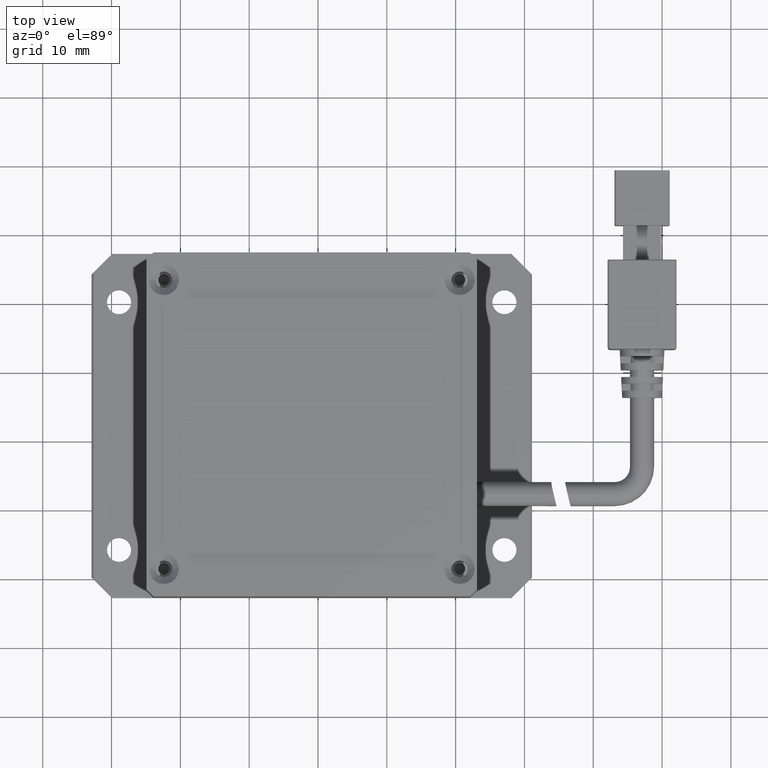
[diagram: clean part render]
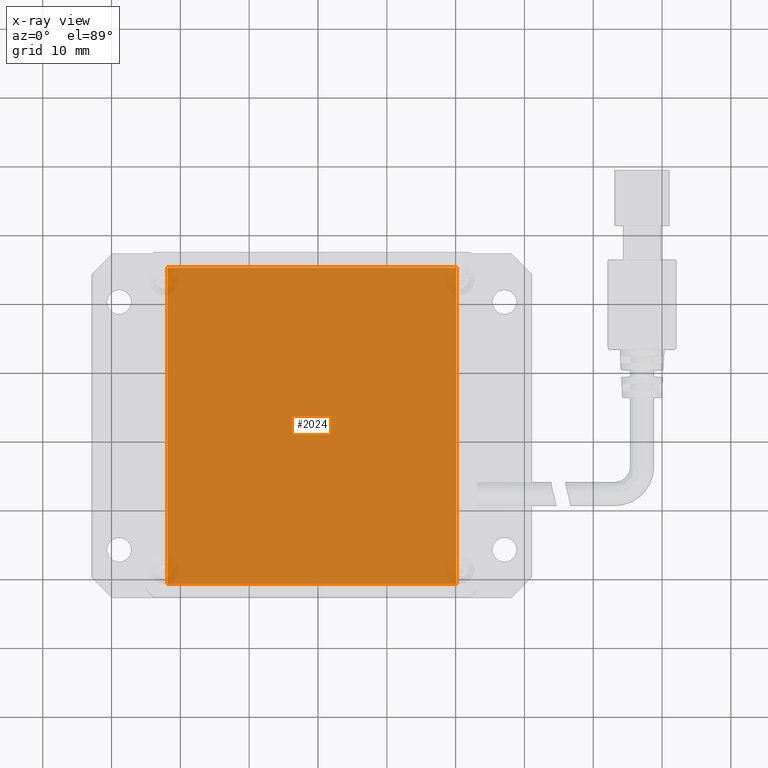
[diagram: x-ray — body ghosted, one internal face saturated and labeled with its STEP entity id]
A machine part, top view, then the same camera in x-ray: the body is ghosted and one INTERNAL B-rep face — a face not visible from any outside direction — is saturated and labeled: STEP entity #2024.
In plain terms, the highlighted planar face has unit normal (0, -0, 1).
Its self-contained STEP definition (entity closure, byte-faithful):
#555 = VERTEX_POINT ( 'NONE', #2632 ) ;
#1889 = PLANE ( 'NONE',  #12805 ) ;
#2024 = ADVANCED_FACE ( 'NONE', ( #12274 ), #1889, .F. ) ;
#2177 = ORIENTED_EDGE ( 'NONE', *, *, #8535, .T. ) ;
#2632 = CARTESIAN_POINT ( 'NONE',  ( -21.90683466972126000, -20.70904925544096300, -1.630813539765796300E-011 ) ) ;
#2653 = CARTESIAN_POINT ( 'NONE',  ( 20.09316533027873300, -20.70904925544096300, -1.630813539765796300E-011 ) ) ;
#2918 = CARTESIAN_POINT ( 'NONE',  ( 20.09316533027873000, 25.29095074455903000, -1.630813539765796300E-011 ) ) ;
#3452 = DIRECTION ( 'NONE',  ( 0.0000000000000000000, 1.000000000000000000, 0.0000000000000000000 ) ) ;
#4644 = DIRECTION ( 'NONE',  ( 7.542275982507859600E-017, -1.000000000000000000, 0.0000000000000000000 ) ) ;
#5262 = LINE ( 'NONE', #8875, #11724 ) ;
#6198 = VERTEX_POINT ( 'NONE', #12659 ) ;
#7077 = LINE ( 'NONE', #2918, #16971 ) ;
#7152 = ORIENTED_EDGE ( 'NONE', *, *, #12345, .T. ) ;
#7231 = VECTOR ( 'NONE', #16957, 1000.000000000000000 ) ;
#8535 = EDGE_CURVE ( 'NONE', #6198, #18507, #19405, .T. ) ;
#8875 = CARTESIAN_POINT ( 'NONE',  ( 20.09316533027873300, -20.70904925544096300, -1.630813539765796300E-011 ) ) ;
#8950 = EDGE_CURVE ( 'NONE', #555, #6198, #20344, .T. ) ;
#10929 = EDGE_LOOP ( 'NONE', ( #11757, #2177, #12118, #7152 ) ) ;
#11052 = CARTESIAN_POINT ( 'NONE',  ( 20.09316533027873300, 25.29095074455903000, -1.630813539765796300E-011 ) ) ;
#11143 = VERTEX_POINT ( 'NONE', #2653 ) ;
#11212 = EDGE_CURVE ( 'NONE', #18507, #11143, #7077, .T. ) ;
#11365 = CARTESIAN_POINT ( 'NONE',  ( -0.9068346697212632500, 2.290950744559034900, -1.630813539765796300E-011 ) ) ;
#11436 = DIRECTION ( 'NONE',  ( 0.0000000000000000000, -0.0000000000000000000, 1.000000000000000000 ) ) ;
#11724 = VECTOR ( 'NONE', #13691, 1000.000000000000000 ) ;
#11757 = ORIENTED_EDGE ( 'NONE', *, *, #8950, .T. ) ;
#11928 = CARTESIAN_POINT ( 'NONE',  ( -21.90683466972126700, 25.29095074455903000, -1.630813539765796300E-011 ) ) ;
#12118 = ORIENTED_EDGE ( 'NONE', *, *, #11212, .T. ) ;
#12274 = FACE_OUTER_BOUND ( 'NONE', #10929, .T. ) ;
#12345 = EDGE_CURVE ( 'NONE', #11143, #555, #5262, .T. ) ;
#12659 = CARTESIAN_POINT ( 'NONE',  ( -21.90683466972126700, 25.29095074455903000, -1.630813539765796300E-011 ) ) ;
#12805 = AXIS2_PLACEMENT_3D ( 'NONE', #11365, #11436, #3452 ) ;
#12865 = DIRECTION ( 'NONE',  ( 1.000000000000000000, -0.0000000000000000000, -0.0000000000000000000 ) ) ;
#13691 = DIRECTION ( 'NONE',  ( -1.000000000000000000, 0.0000000000000000000, 0.0000000000000000000 ) ) ;
#16183 = CARTESIAN_POINT ( 'NONE',  ( 20.09316533027873000, 25.29095074455903000, -1.630813539765796300E-011 ) ) ;
#16957 = DIRECTION ( 'NONE',  ( -1.508455196501571900E-016, 1.000000000000000000, 0.0000000000000000000 ) ) ;
#16971 = VECTOR ( 'NONE', #4644, 1000.000000000000000 ) ;
#18507 = VERTEX_POINT ( 'NONE', #11052 ) ;
#19405 = LINE ( 'NONE', #16183, #20142 ) ;
#20142 = VECTOR ( 'NONE', #12865, 1000.000000000000000 ) ;
#20344 = LINE ( 'NONE', #11928, #7231 ) ;